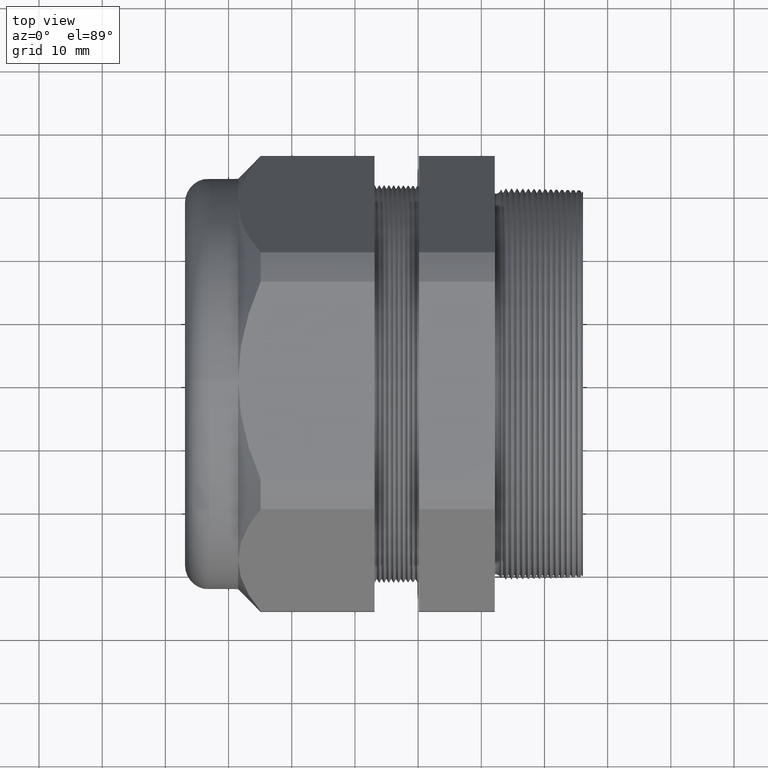
[diagram: clean part render]
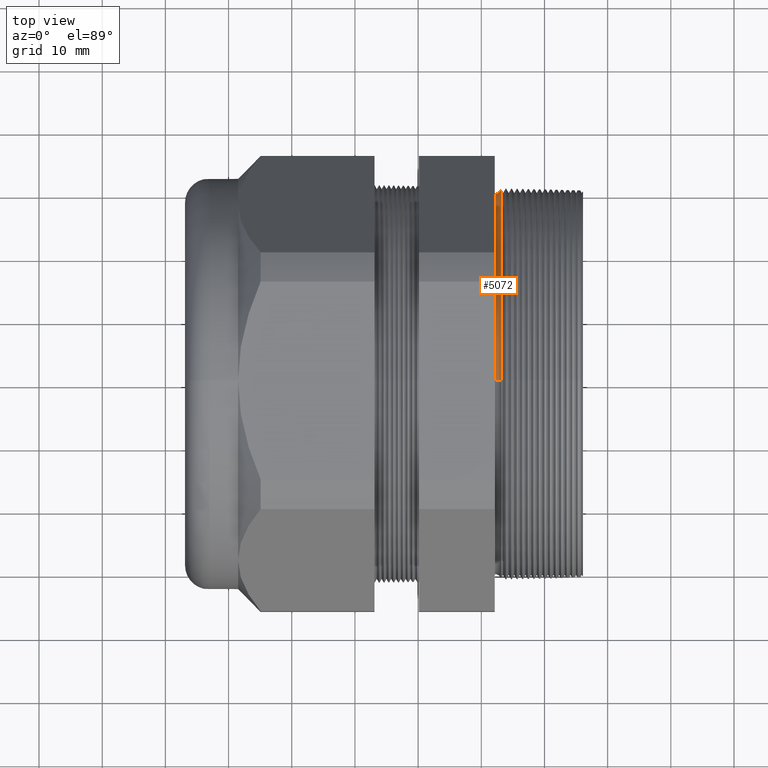
[diagram: same view with one face highlighted and labeled with its STEP entity id]
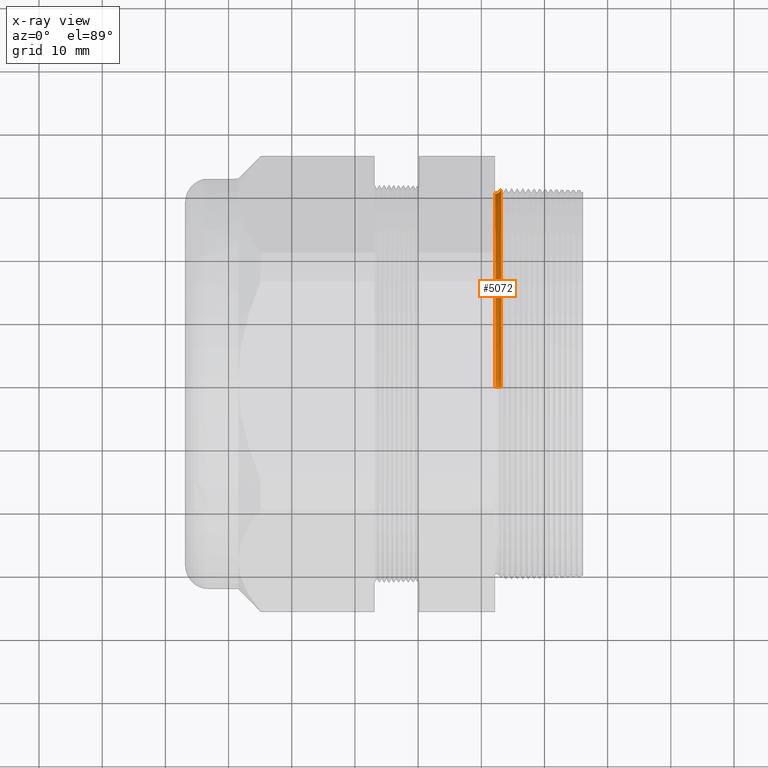
[diagram: x-ray of the same camera — body ghosted, the highlighted face saturated]
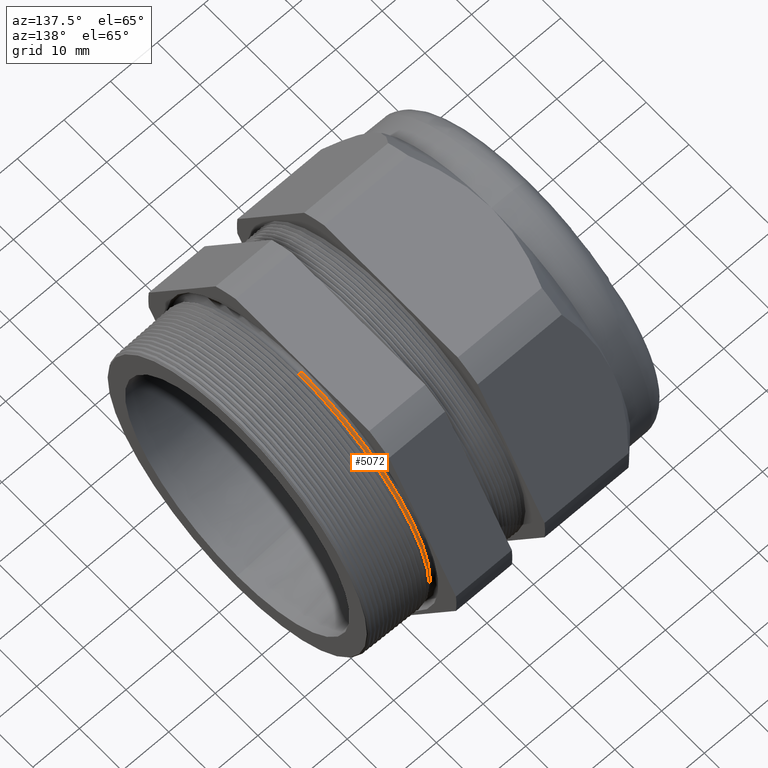
[diagram: same view with one face highlighted and labeled with its STEP entity id]
A machine part, top view. The second image highlights one B-rep face of the part: STEP entity #5072.
The next image is the same camera in x-ray: the body ghosted, the highlighted face saturated — about 3% of this face is hidden behind the body in this view.
A second angle (auxiliary view) of the same face is appended — the face is thin or edge-on in the first view.
In plain terms, the highlighted toroidal blend (fillet) surface has major radius 30.998 mm and minor (blend) radius 0.889 mm.
Its self-contained STEP definition (entity closure, byte-faithful):
#3342 = DIRECTION ( 'NONE',  ( 0.0000000000000000000, 0.0000000000000000000, -1.000000000000000000 ) ) ;
#3343 = DIRECTION ( 'NONE',  ( 1.000000000000000000, 0.0000000000000000000, 0.0000000000000000000 ) ) ;
#3344 = CARTESIAN_POINT ( 'NONE',  ( -0.3049999999999999400, 0.0000000000000000000, 0.0000000000000000000 ) ) ;
#3345 = AXIS2_PLACEMENT_3D ( 'NONE', #3344, #3343, #3342 ) ;
#3346 = TOROIDAL_SURFACE ( 'NONE', #3345, 1.220391908608417600, 0.03499999999999997600 ) ;
#3347 = FACE_OUTER_BOUND ( 'NONE', #5073, .T. ) ;
#3369 = DIRECTION ( 'NONE',  ( 0.0000000000000000000, 1.224646799147357400E-016, 1.000000000000000000 ) ) ;
#3370 = DIRECTION ( 'NONE',  ( 0.0000000000000000000, 1.000000000000000000, -1.224646799147353200E-016 ) ) ;
#3371 = CARTESIAN_POINT ( 'NONE',  ( -0.3049999999999999400, 1.494549044582627900E-016, 1.220391908608417600 ) ) ;
#3372 = AXIS2_PLACEMENT_3D ( 'NONE', #3371, #3370, #3369 ) ;
#3373 = CIRCLE ( 'NONE', #3372, 0.03499999999999989900 ) ;
#3379 = DIRECTION ( 'NONE',  ( 0.0000000000000000000, 0.0000000000000000000, 1.000000000000000000 ) ) ;
#3380 = DIRECTION ( 'NONE',  ( 1.000000000000000000, 0.0000000000000000000, 0.0000000000000000000 ) ) ;
#3381 = CARTESIAN_POINT ( 'NONE',  ( -0.2708463023710532800, 0.0000000000000000000, 0.0000000000000000000 ) ) ;
#3382 = AXIS2_PLACEMENT_3D ( 'NONE', #3381, #3380, #3379 ) ;
#3383 = CIRCLE ( 'NONE', #3382, 1.212741749246037500 ) ;
#3385 = CARTESIAN_POINT ( 'NONE',  ( -0.2708463023710532800, 0.0000000000000000000, 1.212741749246037700 ) ) ;
#3421 = CARTESIAN_POINT ( 'NONE',  ( -0.3049999999999999400, 1.451686406612470500E-016, 1.185391908608417700 ) ) ;
#3422 = DIRECTION ( 'NONE',  ( 0.0000000000000000000, 0.0000000000000000000, -1.000000000000000000 ) ) ;
#3423 = DIRECTION ( 'NONE',  ( 1.000000000000000000, 0.0000000000000000000, 0.0000000000000000000 ) ) ;
#3424 = CARTESIAN_POINT ( 'NONE',  ( -0.3049999999999999400, 0.0000000000000000000, 0.0000000000000000000 ) ) ;
#3425 = AXIS2_PLACEMENT_3D ( 'NONE', #3424, #3423, #3422 ) ;
#3426 = CIRCLE ( 'NONE', #3425, 1.185391908608417700 ) ;
#3427 = CARTESIAN_POINT ( 'NONE',  ( -0.2708463023710532800, 1.485180301406521800E-016, -1.212741749246037700 ) ) ;
#3428 = DIRECTION ( 'NONE',  ( 0.0000000000000000000, 0.0000000000000000000, -1.000000000000000000 ) ) ;
#3429 = DIRECTION ( 'NONE',  ( 0.0000000000000000000, -1.000000000000000000, 0.0000000000000000000 ) ) ;
#3430 = CARTESIAN_POINT ( 'NONE',  ( -0.3049999999999999400, 0.0000000000000000000, -1.220391908608417600 ) ) ;
#3431 = AXIS2_PLACEMENT_3D ( 'NONE', #3430, #3429, #3428 ) ;
#3432 = CIRCLE ( 'NONE', #3431, 0.03499999999999989900 ) ;
#3433 = CARTESIAN_POINT ( 'NONE',  ( -0.3049999999999999400, 0.0000000000000000000, -1.185391908608417700 ) ) ;
#5072 = ADVANCED_FACE ( 'NONE', ( #3347 ), #3346, .F. ) ;
#5073 = EDGE_LOOP ( 'NONE', ( #5100, #5094, #5101, #5087 ) ) ;
#5086 = VERTEX_POINT ( 'NONE', #3385 ) ;
#5087 = ORIENTED_EDGE ( 'NONE', *, *, #5088, .F. ) ;
#5088 = EDGE_CURVE ( 'NONE', #5097, #5086, #3383, .T. ) ;
#5093 = EDGE_CURVE ( 'NONE', #5086, #5099, #3373, .T. ) ;
#5094 = ORIENTED_EDGE ( 'NONE', *, *, #5098, .T. ) ;
#5095 = VERTEX_POINT ( 'NONE', #3433 ) ;
#5096 = EDGE_CURVE ( 'NONE', #5097, #5095, #3432, .T. ) ;
#5097 = VERTEX_POINT ( 'NONE', #3427 ) ;
#5098 = EDGE_CURVE ( 'NONE', #5095, #5099, #3426, .T. ) ;
#5099 = VERTEX_POINT ( 'NONE', #3421 ) ;
#5100 = ORIENTED_EDGE ( 'NONE', *, *, #5096, .T. ) ;
#5101 = ORIENTED_EDGE ( 'NONE', *, *, #5093, .F. ) ;